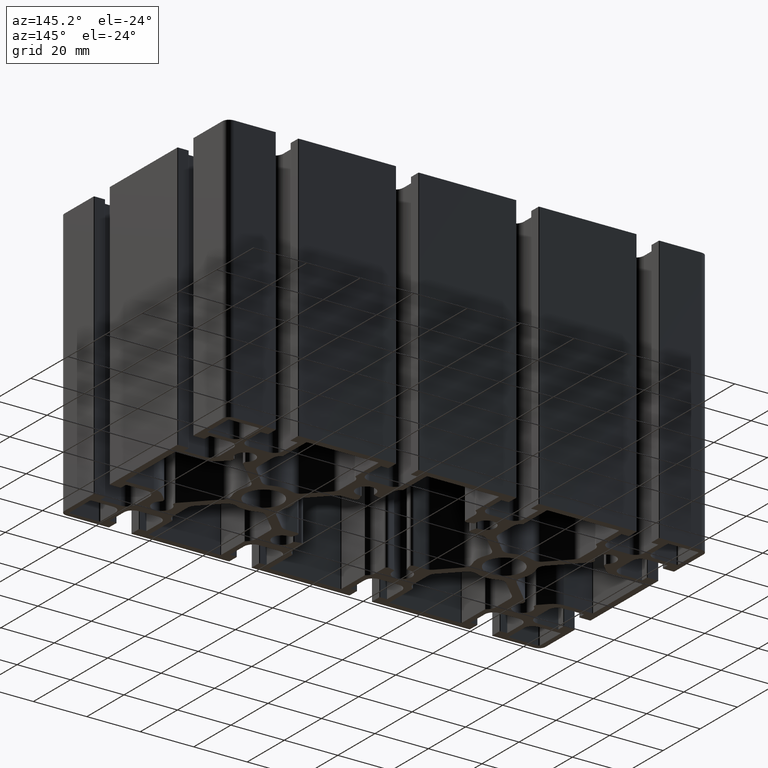
[diagram: clean part render]
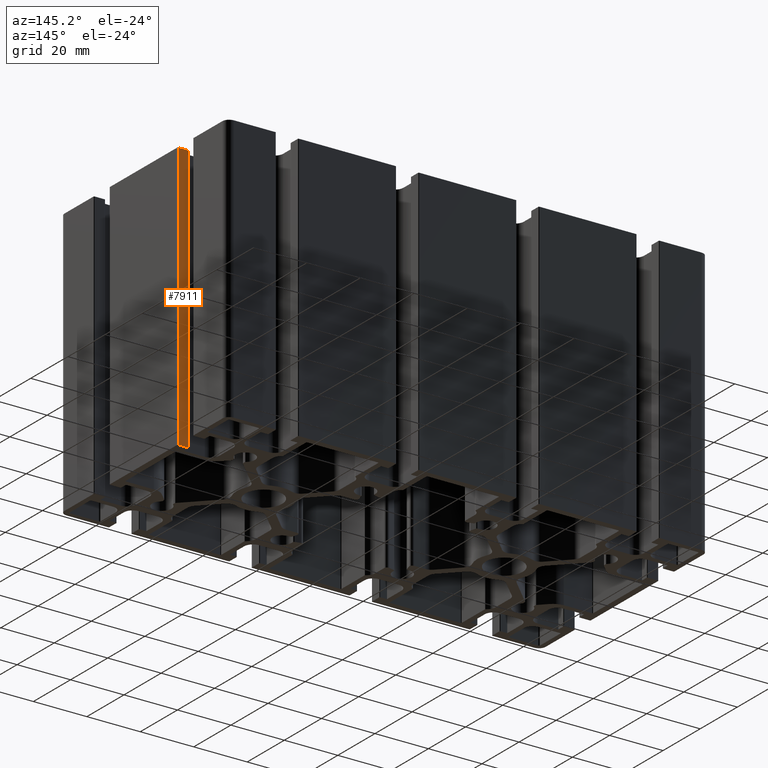
[diagram: same view with one face highlighted and labeled with its STEP entity id]
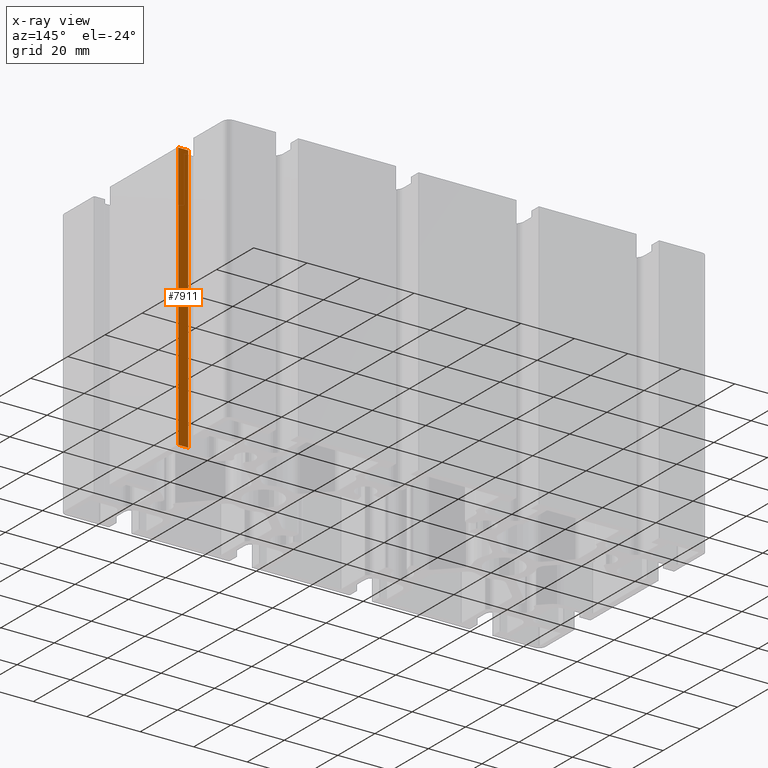
[diagram: x-ray of the same camera — body ghosted, the highlighted face saturated]
A machine part, auxiliary view. The second image highlights one B-rep face of the part: STEP entity #7911.
The next image is the same camera in x-ray: the body ghosted, the highlighted face saturated — about 0% of this face is hidden behind the body in this view.
In plain terms, the highlighted planar face has unit normal (0, -1, 0).
Its self-contained STEP definition (entity closure, byte-faithful):
#837=FACE_OUTER_BOUND('',#1245,.T.);
#1245=EDGE_LOOP('',(#5741,#5742,#5743,#5744));
#1830=LINE('',#12403,#2618);
#1831=LINE('',#12406,#2619);
#1832=LINE('',#12408,#2620);
#1833=LINE('',#12409,#2621);
#2618=VECTOR('',#9936,100.);
#2619=VECTOR('',#9939,3.70000000000001);
#2620=VECTOR('',#9940,3.70000000000001);
#2621=VECTOR('',#9941,100.);
#3422=VERTEX_POINT('',#12397);
#3424=VERTEX_POINT('',#12401);
#3425=VERTEX_POINT('',#12405);
#3426=VERTEX_POINT('',#12407);
#4380=EDGE_CURVE('',#3424,#3422,#1830,.T.);
#4381=EDGE_CURVE('',#3422,#3425,#1831,.T.);
#4382=EDGE_CURVE('',#3426,#3424,#1832,.T.);
#4383=EDGE_CURVE('',#3426,#3425,#1833,.T.);
#5741=ORIENTED_EDGE('',*,*,#4381,.F.);
#5742=ORIENTED_EDGE('',*,*,#4380,.F.);
#5743=ORIENTED_EDGE('',*,*,#4382,.F.);
#5744=ORIENTED_EDGE('',*,*,#4383,.T.);
#7636=PLANE('',#8483);
#7911=ADVANCED_FACE('',(#837),#7636,.F.);
#8483=AXIS2_PLACEMENT_3D('',#12404,#9937,#9938);
#9936=DIRECTION('',(0.,0.,1.));
#9937=DIRECTION('center_axis',(1.8003616615543E-15,-1.,0.));
#9938=DIRECTION('ref_axis',(0.,0.,-1.));
#9939=DIRECTION('',(-1.,-1.8003616615543E-15,0.));
#9940=DIRECTION('',(1.,1.8003616615543E-15,0.));
#9941=DIRECTION('',(0.,0.,1.));
#12397=CARTESIAN_POINT('',(89.7,18.35,100.));
#12401=CARTESIAN_POINT('',(89.7,18.35,0.));
#12403=CARTESIAN_POINT('',(89.7,18.35,0.));
#12404=CARTESIAN_POINT('Origin',(89.7,18.35,0.));
#12405=CARTESIAN_POINT('',(86.,18.35,100.));
#12406=CARTESIAN_POINT('',(44.85,18.3499999999999,100.));
#12407=CARTESIAN_POINT('',(86.,18.35,0.));
#12408=CARTESIAN_POINT('',(44.85,18.3499999999999,0.));
#12409=CARTESIAN_POINT('',(86.,18.35,0.));